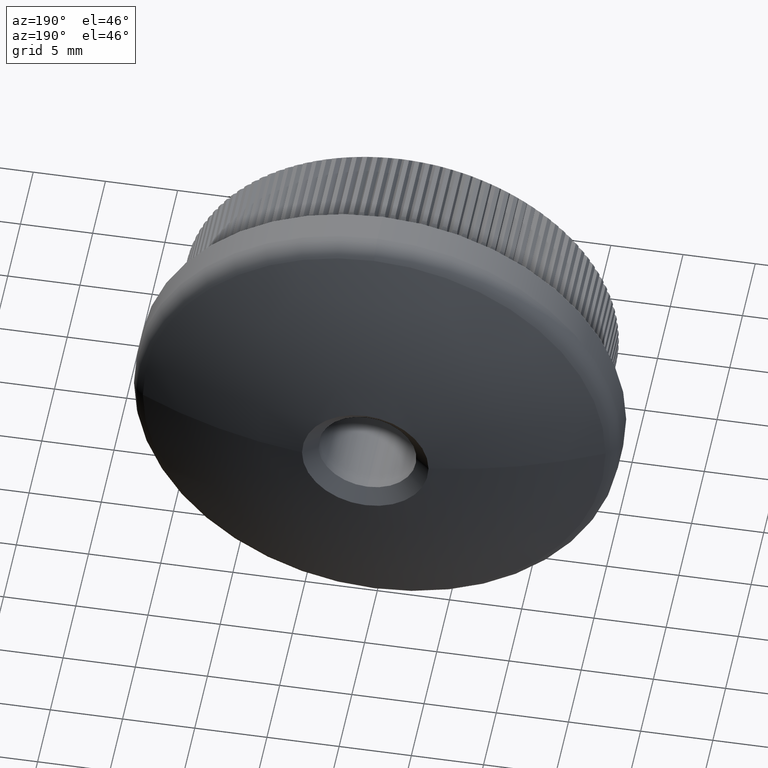
[diagram: clean part render]
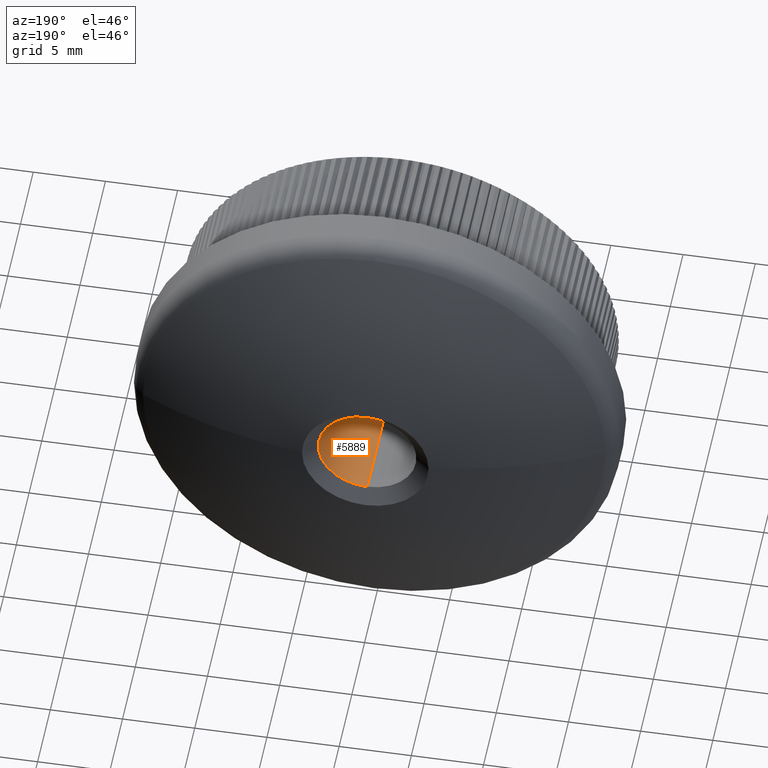
[diagram: same view with one face highlighted and labeled with its STEP entity id]
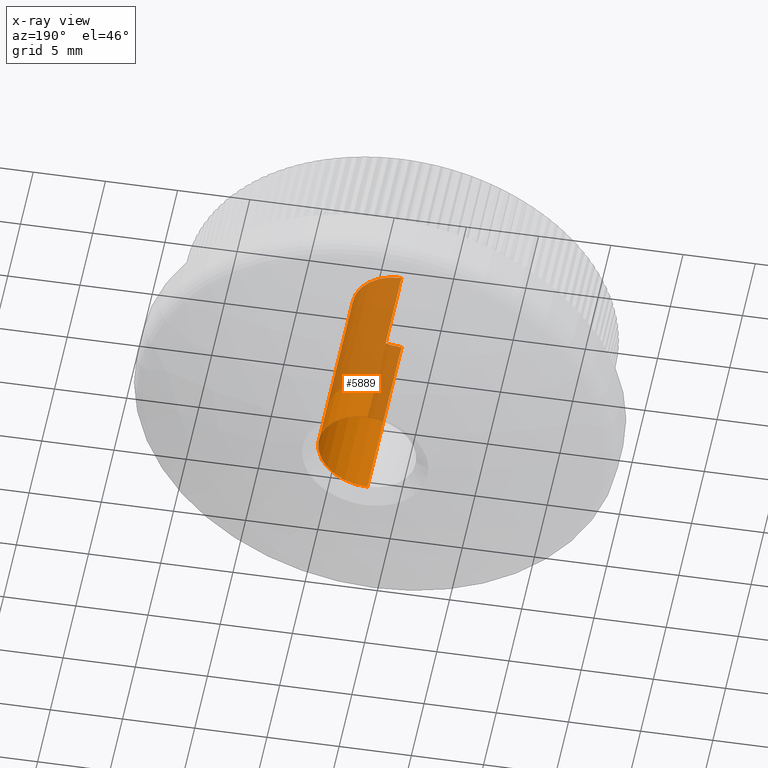
[diagram: x-ray of the same camera — body ghosted, the highlighted face saturated]
A machine part, auxiliary view. The second image highlights one B-rep face of the part: STEP entity #5889.
The next image is the same camera in x-ray: the body ghosted, the highlighted face saturated — about 55% of this face is hidden behind the body in this view.
In plain terms, the highlighted cylindrical surface (partial cylindrical patch) has radius 3.4 mm, axis along (-0, -1, -0).
Its self-contained STEP definition (entity closure, byte-faithful):
#2038 = DIRECTION ( 'NONE',  ( -0.0000000000000000000, -1.000000000000000000, -0.0000000000000000000 ) ) ;
#3631 = CARTESIAN_POINT ( 'NONE',  ( 4.163799117100995600E-016, 13.92138306863526700, 3.399999999999995500 ) ) ;
#3929 = LINE ( 'NONE', #6752, #21871 ) ;
#4982 = CARTESIAN_POINT ( 'NONE',  ( 0.0000000000000000000, 0.4999999999999891800, -3.399999999999995500 ) ) ;
#5889 = ADVANCED_FACE ( 'NONE', ( #21445 ), #24326, .F. ) ;
#6178 = ORIENTED_EDGE ( 'NONE', *, *, #12270, .T. ) ;
#6316 = CARTESIAN_POINT ( 'NONE',  ( 0.0000000000000000000, 0.0000000000000000000, -3.399999999999995500 ) ) ;
#6752 = CARTESIAN_POINT ( 'NONE',  ( 4.163799117100995600E-016, 0.0000000000000000000, 3.399999999999995500 ) ) ;
#7587 = EDGE_CURVE ( 'NONE', #14064, #14593, #3929, .T. ) ;
#8234 = VERTEX_POINT ( 'NONE', #24373 ) ;
#9487 = EDGE_CURVE ( 'NONE', #14064, #8234, #13469, .T. ) ;
#9715 = DIRECTION ( 'NONE',  ( 0.0000000000000000000, -1.000000000000000000, 0.0000000000000000000 ) ) ;
#9928 = ORIENTED_EDGE ( 'NONE', *, *, #7587, .F. ) ;
#10222 = DIRECTION ( 'NONE',  ( -0.0000000000000000000, -1.000000000000000000, -0.0000000000000000000 ) ) ;
#11071 = VECTOR ( 'NONE', #10222, 1000.000000000000000 ) ;
#11991 = AXIS2_PLACEMENT_3D ( 'NONE', #24223, #9715, #17901 ) ;
#12270 = EDGE_CURVE ( 'NONE', #21938, #14593, #15374, .T. ) ;
#12465 = AXIS2_PLACEMENT_3D ( 'NONE', #26576, #2038, #16534 ) ;
#13469 = CIRCLE ( 'NONE', #21041, 3.399999999999995500 ) ;
#14064 = VERTEX_POINT ( 'NONE', #3631 ) ;
#14593 = VERTEX_POINT ( 'NONE', #23959 ) ;
#14662 = DIRECTION ( 'NONE',  ( 0.0000000000000000000, 1.000000000000000000, 0.0000000000000000000 ) ) ;
#15374 = CIRCLE ( 'NONE', #11991, 3.399999999999995500 ) ;
#16177 = EDGE_CURVE ( 'NONE', #8234, #21938, #20375, .T. ) ;
#16534 = DIRECTION ( 'NONE',  ( 0.0000000000000000000, 0.0000000000000000000, -1.000000000000000000 ) ) ;
#16753 = DIRECTION ( 'NONE',  ( 0.0000000000000000000, 0.0000000000000000000, 1.000000000000000000 ) ) ;
#17901 = DIRECTION ( 'NONE',  ( 0.0000000000000000000, 0.0000000000000000000, -1.000000000000000000 ) ) ;
#18366 = ORIENTED_EDGE ( 'NONE', *, *, #9487, .T. ) ;
#20375 = LINE ( 'NONE', #6316, #11071 ) ;
#20659 = ORIENTED_EDGE ( 'NONE', *, *, #16177, .T. ) ;
#21041 = AXIS2_PLACEMENT_3D ( 'NONE', #24847, #14662, #16753 ) ;
#21121 = DIRECTION ( 'NONE',  ( -0.0000000000000000000, -1.000000000000000000, -0.0000000000000000000 ) ) ;
#21445 = FACE_OUTER_BOUND ( 'NONE', #25955, .T. ) ;
#21871 = VECTOR ( 'NONE', #21121, 1000.000000000000000 ) ;
#21938 = VERTEX_POINT ( 'NONE', #4982 ) ;
#23959 = CARTESIAN_POINT ( 'NONE',  ( 4.163799117100995600E-016, 0.4999999999999891800, 3.399999999999995500 ) ) ;
#24223 = CARTESIAN_POINT ( 'NONE',  ( 0.0000000000000000000, 0.4999999999999891800, 0.0000000000000000000 ) ) ;
#24326 = CYLINDRICAL_SURFACE ( 'NONE', #12465, 3.399999999999995500 ) ;
#24373 = CARTESIAN_POINT ( 'NONE',  ( 0.0000000000000000000, 13.92138306863526700, -3.399999999999995500 ) ) ;
#24847 = CARTESIAN_POINT ( 'NONE',  ( 0.0000000000000000000, 13.92138306863526700, 0.0000000000000000000 ) ) ;
#25955 = EDGE_LOOP ( 'NONE', ( #9928, #18366, #20659, #6178 ) ) ;
#26576 = CARTESIAN_POINT ( 'NONE',  ( 0.0000000000000000000, 0.0000000000000000000, 0.0000000000000000000 ) ) ;